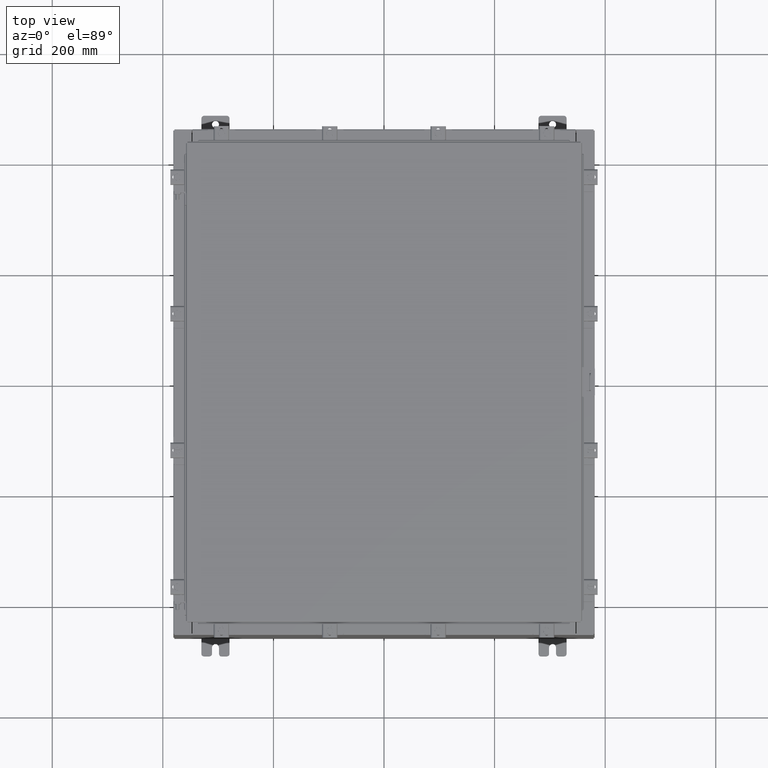
[diagram: clean part render]
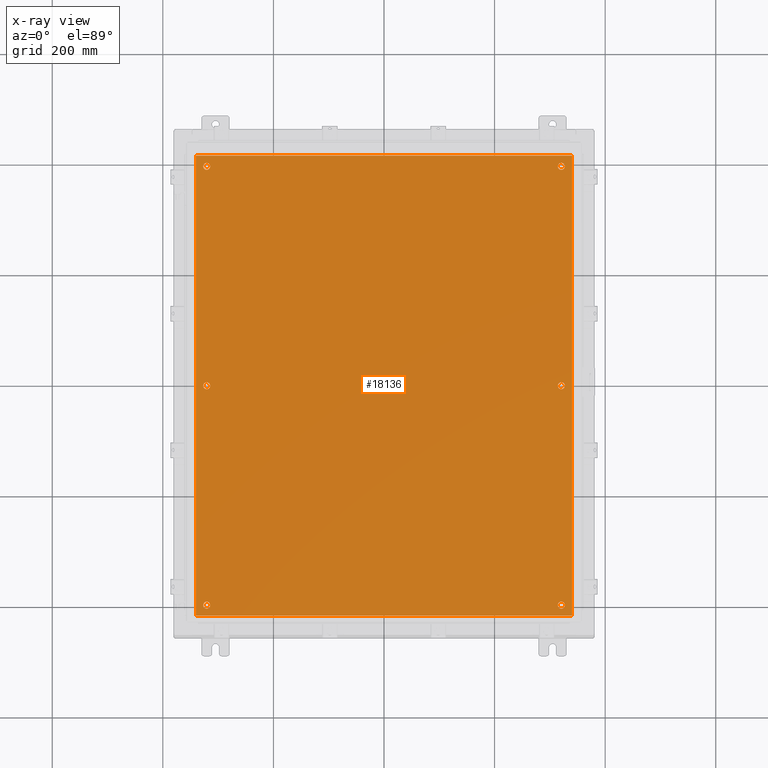
[diagram: x-ray — body ghosted, one internal face saturated and labeled with its STEP entity id]
A machine part, top view, then the same camera in x-ray: the body is ghosted and one INTERNAL B-rep face — a face not visible from any outside direction — is saturated and labeled: STEP entity #18136.
In plain terms, the highlighted planar face has unit normal (0, 0, -1).
Its self-contained STEP definition (entity closure, byte-faithful):
#38 = EDGE_LOOP ( 'NONE', ( #21388, #5611 ) ) ;
#407 = EDGE_CURVE ( 'NONE', #22909, #5419, #1559, .T. ) ;
#501 = CARTESIAN_POINT ( 'NONE',  ( 12.87500000000000400, 3.355087480100814800E-015, -0.1039999999999999800 ) ) ;
#622 = DIRECTION ( 'NONE',  ( -0.0000000000000000000, -0.0000000000000000000, 1.000000000000000000 ) ) ;
#623 = AXIS2_PLACEMENT_3D ( 'NONE', #18167, #6814, #20050 ) ;
#702 = DIRECTION ( 'NONE',  ( 0.0000000000000000000, 0.0000000000000000000, -1.000000000000000000 ) ) ;
#834 = DIRECTION ( 'NONE',  ( -1.000000000000000000, 0.0000000000000000000, 0.0000000000000000000 ) ) ;
#947 = CARTESIAN_POINT ( 'NONE',  ( 12.37500000000000400, -15.62500000000000400, -0.1039999999999999800 ) ) ;
#1303 = CARTESIAN_POINT ( 'NONE',  ( -12.87500000000000500, 15.62500000000000400, -0.1039999999999999800 ) ) ;
#1559 = CIRCLE ( 'NONE', #10254, 0.2500000000000008900 ) ;
#1642 = DIRECTION ( 'NONE',  ( -0.0000000000000000000, -0.0000000000000000000, 1.000000000000000000 ) ) ;
#1868 = FACE_BOUND ( 'NONE', #19933, .T. ) ;
#1893 = DIRECTION ( 'NONE',  ( 0.0000000000000000000, -1.000000000000000000, 0.0000000000000000000 ) ) ;
#1905 = VERTEX_POINT ( 'NONE', #2828 ) ;
#1983 = EDGE_CURVE ( 'NONE', #10000, #5235, #14545, .T. ) ;
#2162 = ORIENTED_EDGE ( 'NONE', *, *, #15969, .T. ) ;
#2285 = CIRCLE ( 'NONE', #19670, 0.2500000000000008900 ) ;
#2319 = CIRCLE ( 'NONE', #23631, 0.2500000000000008900 ) ;
#2362 = ORIENTED_EDGE ( 'NONE', *, *, #407, .T. ) ;
#2614 = CARTESIAN_POINT ( 'NONE',  ( -12.62500000000000400, 15.62500000000000400, -0.1039999999999999800 ) ) ;
#2792 = VERTEX_POINT ( 'NONE', #4327 ) ;
#2797 = ORIENTED_EDGE ( 'NONE', *, *, #24186, .F. ) ;
#2828 = CARTESIAN_POINT ( 'NONE',  ( 12.87500000000000500, 15.62500000000000400, -0.1039999999999999800 ) ) ;
#2963 = CARTESIAN_POINT ( 'NONE',  ( 12.37500000000000400, 15.62500000000000400, -0.1039999999999999800 ) ) ;
#3506 = CIRCLE ( 'NONE', #13500, 0.2500000000000008900 ) ;
#3669 = LINE ( 'NONE', #11580, #16441 ) ;
#3691 = CARTESIAN_POINT ( 'NONE',  ( -12.37500000000000400, -15.62500000000000400, -0.1039999999999999800 ) ) ;
#3742 = VERTEX_POINT ( 'NONE', #23144 ) ;
#3812 = CARTESIAN_POINT ( 'NONE',  ( 12.62500000000000400, -15.62500000000000400, -0.1039999999999999800 ) ) ;
#3838 = CARTESIAN_POINT ( 'NONE',  ( 12.62500000000000400, 15.62500000000000400, -0.1039999999999999800 ) ) ;
#3906 = CARTESIAN_POINT ( 'NONE',  ( -12.87500000000000400, 2.934704822324311800E-016, -0.1039999999999999800 ) ) ;
#4046 = CARTESIAN_POINT ( 'NONE',  ( -12.37500000000000200, 2.628543122537475400E-016, -0.1039999999999999800 ) ) ;
#4250 = EDGE_LOOP ( 'NONE', ( #21728, #12478 ) ) ;
#4327 = CARTESIAN_POINT ( 'NONE',  ( -13.38300000000000300, -16.38299999999999900, -0.1040000000000020100 ) ) ;
#4447 = ORIENTED_EDGE ( 'NONE', *, *, #9246, .F. ) ;
#4535 = DIRECTION ( 'NONE',  ( -1.000000000000000000, 0.0000000000000000000, 0.0000000000000000000 ) ) ;
#4801 = EDGE_CURVE ( 'NONE', #7466, #18627, #4895, .T. ) ;
#4895 = CIRCLE ( 'NONE', #20176, 0.2500000000000008900 ) ;
#4942 = CARTESIAN_POINT ( 'NONE',  ( 12.62500000000000200, 3.355087480100814800E-015, -0.1039999999999999800 ) ) ;
#4975 = CARTESIAN_POINT ( 'NONE',  ( 13.50000000000000000, 16.38299999999999900, -0.1040000000000009100 ) ) ;
#5097 = AXIS2_PLACEMENT_3D ( 'NONE', #3838, #17100, #5757 ) ;
#5235 = VERTEX_POINT ( 'NONE', #12713 ) ;
#5419 = VERTEX_POINT ( 'NONE', #16974 ) ;
#5611 = ORIENTED_EDGE ( 'NONE', *, *, #11730, .T. ) ;
#5658 = EDGE_CURVE ( 'NONE', #3742, #13104, #22637, .T. ) ;
#5729 = DIRECTION ( 'NONE',  ( -1.000000000000000000, 0.0000000000000000000, 0.0000000000000000000 ) ) ;
#5757 = DIRECTION ( 'NONE',  ( -1.000000000000000000, 0.0000000000000000000, 0.0000000000000000000 ) ) ;
#5960 = EDGE_CURVE ( 'NONE', #19551, #7737, #16737, .T. ) ;
#6130 = EDGE_LOOP ( 'NONE', ( #9622, #2162 ) ) ;
#6201 = EDGE_CURVE ( 'NONE', #13104, #3742, #22029, .T. ) ;
#6814 = DIRECTION ( 'NONE',  ( -0.0000000000000000000, -0.0000000000000000000, 1.000000000000000000 ) ) ;
#6830 = DIRECTION ( 'NONE',  ( -1.000000000000000000, 0.0000000000000000000, 0.0000000000000000000 ) ) ;
#6914 = FACE_BOUND ( 'NONE', #4250, .T. ) ;
#7466 = VERTEX_POINT ( 'NONE', #3906 ) ;
#7737 = VERTEX_POINT ( 'NONE', #16094 ) ;
#7808 = CARTESIAN_POINT ( 'NONE',  ( -12.62500000000000200, 2.628543122537475400E-016, -0.1039999999999999800 ) ) ;
#7828 = ORIENTED_EDGE ( 'NONE', *, *, #21973, .T. ) ;
#8270 = CARTESIAN_POINT ( 'NONE',  ( -12.62500000000000400, 15.62500000000000400, -0.1039999999999999800 ) ) ;
#8711 = ORIENTED_EDGE ( 'NONE', *, *, #4801, .T. ) ;
#9148 = VECTOR ( 'NONE', #14987, 39.37007874015748100 ) ;
#9224 = CARTESIAN_POINT ( 'NONE',  ( 12.62500000000000400, 15.62500000000000400, -0.1039999999999999800 ) ) ;
#9246 = EDGE_CURVE ( 'NONE', #2792, #23402, #3669, .T. ) ;
#9431 = CARTESIAN_POINT ( 'NONE',  ( -13.38300000000000300, 16.38299999999998800, -0.1040000000000063800 ) ) ;
#9498 = VECTOR ( 'NONE', #18225, 39.37007874015748100 ) ;
#9622 = ORIENTED_EDGE ( 'NONE', *, *, #5960, .T. ) ;
#9721 = DIRECTION ( 'NONE',  ( -1.000000000000000000, 0.0000000000000000000, 0.0000000000000000000 ) ) ;
#10000 = VERTEX_POINT ( 'NONE', #13339 ) ;
#10211 = DIRECTION ( 'NONE',  ( -1.000000000000000000, 0.0000000000000000000, 0.0000000000000000000 ) ) ;
#10254 = AXIS2_PLACEMENT_3D ( 'NONE', #8270, #21507, #10211 ) ;
#10275 = LINE ( 'NONE', #9431, #19722 ) ;
#11151 = DIRECTION ( 'NONE',  ( -0.0000000000000000000, -0.0000000000000000000, 1.000000000000000000 ) ) ;
#11168 = DIRECTION ( 'NONE',  ( -1.000000000000000000, 0.0000000000000000000, 0.0000000000000000000 ) ) ;
#11350 = EDGE_LOOP ( 'NONE', ( #4447, #2797, #20906, #11423 ) ) ;
#11412 = ORIENTED_EDGE ( 'NONE', *, *, #14083, .T. ) ;
#11423 = ORIENTED_EDGE ( 'NONE', *, *, #16613, .F. ) ;
#11580 = CARTESIAN_POINT ( 'NONE',  ( -13.50000000000000000, -16.38299999999999900, -0.1040000000000020100 ) ) ;
#11646 = EDGE_CURVE ( 'NONE', #14659, #18201, #3506, .T. ) ;
#11730 = EDGE_CURVE ( 'NONE', #18201, #14659, #2319, .T. ) ;
#11977 = FACE_BOUND ( 'NONE', #38, .T. ) ;
#12006 = CARTESIAN_POINT ( 'NONE',  ( -12.62500000000000400, -15.62500000000000400, -0.1039999999999999800 ) ) ;
#12199 = DIRECTION ( 'NONE',  ( -0.0000000000000000000, -0.0000000000000000000, 1.000000000000000000 ) ) ;
#12469 = CARTESIAN_POINT ( 'NONE',  ( 12.87500000000000500, -15.62500000000000400, -0.1039999999999999800 ) ) ;
#12478 = ORIENTED_EDGE ( 'NONE', *, *, #23094, .T. ) ;
#12713 = CARTESIAN_POINT ( 'NONE',  ( -13.38300000000000300, 16.38299999999998800, -0.1040000000000063800 ) ) ;
#12823 = VERTEX_POINT ( 'NONE', #2963 ) ;
#12868 = ORIENTED_EDGE ( 'NONE', *, *, #5658, .T. ) ;
#13000 = CARTESIAN_POINT ( 'NONE',  ( 12.62500000000000200, 3.355087480100814800E-015, -0.1039999999999999800 ) ) ;
#13104 = VERTEX_POINT ( 'NONE', #3691 ) ;
#13208 = CIRCLE ( 'NONE', #623, 0.2500000000000008900 ) ;
#13339 = CARTESIAN_POINT ( 'NONE',  ( 13.38299999999999900, 16.38300000000000300, -0.1040000000000009100 ) ) ;
#13500 = AXIS2_PLACEMENT_3D ( 'NONE', #22434, #11151, #24333 ) ;
#13878 = DIRECTION ( 'NONE',  ( -1.000000000000000000, 0.0000000000000000000, 0.0000000000000000000 ) ) ;
#13943 = DIRECTION ( 'NONE',  ( -1.000000000000000000, 0.0000000000000000000, -0.0000000000000000000 ) ) ;
#13956 = EDGE_LOOP ( 'NONE', ( #11412, #8711 ) ) ;
#14083 = EDGE_CURVE ( 'NONE', #18627, #7466, #13208, .T. ) ;
#14457 = EDGE_LOOP ( 'NONE', ( #19360, #12868 ) ) ;
#14545 = LINE ( 'NONE', #4975, #9498 ) ;
#14659 = VERTEX_POINT ( 'NONE', #12469 ) ;
#14787 = LINE ( 'NONE', #20430, #9148 ) ;
#14879 = DIRECTION ( 'NONE',  ( -1.000000000000000000, 0.0000000000000000000, 0.0000000000000000000 ) ) ;
#14987 = DIRECTION ( 'NONE',  ( 0.0000000000000000000, 1.000000000000000000, 0.0000000000000000000 ) ) ;
#15622 = AXIS2_PLACEMENT_3D ( 'NONE', #19548, #702, #13943 ) ;
#15667 = CIRCLE ( 'NONE', #20630, 0.2500000000000008900 ) ;
#15901 = DIRECTION ( 'NONE',  ( -0.0000000000000000000, -0.0000000000000000000, 1.000000000000000000 ) ) ;
#15969 = EDGE_CURVE ( 'NONE', #7737, #19551, #15667, .T. ) ;
#16094 = CARTESIAN_POINT ( 'NONE',  ( 12.37500000000000200, 3.385703650079498500E-015, -0.1039999999999999800 ) ) ;
#16441 = VECTOR ( 'NONE', #19081, 39.37007874015748100 ) ;
#16613 = EDGE_CURVE ( 'NONE', #23402, #10000, #14787, .T. ) ;
#16737 = CIRCLE ( 'NONE', #21147, 0.2500000000000008900 ) ;
#16831 = CARTESIAN_POINT ( 'NONE',  ( 13.38299999999999900, -16.38300000000000300, -0.1040000000000009100 ) ) ;
#16974 = CARTESIAN_POINT ( 'NONE',  ( -12.37500000000000400, 15.62500000000000400, -0.1039999999999999800 ) ) ;
#16985 = FACE_BOUND ( 'NONE', #13956, .T. ) ;
#16999 = AXIS2_PLACEMENT_3D ( 'NONE', #9224, #22451, #11168 ) ;
#17082 = DIRECTION ( 'NONE',  ( -0.0000000000000000000, -0.0000000000000000000, 1.000000000000000000 ) ) ;
#17100 = DIRECTION ( 'NONE',  ( -0.0000000000000000000, -0.0000000000000000000, 1.000000000000000000 ) ) ;
#17570 = FACE_BOUND ( 'NONE', #6130, .T. ) ;
#18136 = ADVANCED_FACE ( 'NONE', ( #17570, #16985, #22002, #11977, #6914, #1868, #21398 ), #23353, .T. ) ;
#18167 = CARTESIAN_POINT ( 'NONE',  ( -12.62500000000000200, 2.628543122537475400E-016, -0.1039999999999999800 ) ) ;
#18189 = DIRECTION ( 'NONE',  ( -0.0000000000000000000, -0.0000000000000000000, 1.000000000000000000 ) ) ;
#18201 = VERTEX_POINT ( 'NONE', #947 ) ;
#18225 = DIRECTION ( 'NONE',  ( -1.000000000000000000, -0.0000000000000000000, -0.0000000000000000000 ) ) ;
#18627 = VERTEX_POINT ( 'NONE', #4046 ) ;
#19081 = DIRECTION ( 'NONE',  ( 1.000000000000000000, -0.0000000000000000000, -0.0000000000000000000 ) ) ;
#19360 = ORIENTED_EDGE ( 'NONE', *, *, #6201, .T. ) ;
#19424 = AXIS2_PLACEMENT_3D ( 'NONE', #12006, #622, #13878 ) ;
#19548 = CARTESIAN_POINT ( 'NONE',  ( 0.0000000000000000000, 0.0000000000000000000, -0.1039999999999999800 ) ) ;
#19551 = VERTEX_POINT ( 'NONE', #501 ) ;
#19670 = AXIS2_PLACEMENT_3D ( 'NONE', #2614, #15901, #4535 ) ;
#19722 = VECTOR ( 'NONE', #1893, 39.37007874015748100 ) ;
#19933 = EDGE_LOOP ( 'NONE', ( #7828, #2362 ) ) ;
#20050 = DIRECTION ( 'NONE',  ( -1.000000000000000000, 0.0000000000000000000, 0.0000000000000000000 ) ) ;
#20176 = AXIS2_PLACEMENT_3D ( 'NONE', #7808, #21023, #9721 ) ;
#20430 = CARTESIAN_POINT ( 'NONE',  ( 13.38299999999999900, -16.38300000000000300, -0.1040000000000009100 ) ) ;
#20630 = AXIS2_PLACEMENT_3D ( 'NONE', #4942, #18189, #6830 ) ;
#20906 = ORIENTED_EDGE ( 'NONE', *, *, #1983, .F. ) ;
#20933 = CIRCLE ( 'NONE', #5097, 0.2500000000000008900 ) ;
#21023 = DIRECTION ( 'NONE',  ( -0.0000000000000000000, -0.0000000000000000000, 1.000000000000000000 ) ) ;
#21147 = AXIS2_PLACEMENT_3D ( 'NONE', #13000, #1642, #14879 ) ;
#21388 = ORIENTED_EDGE ( 'NONE', *, *, #11646, .T. ) ;
#21398 = FACE_OUTER_BOUND ( 'NONE', #11350, .T. ) ;
#21507 = DIRECTION ( 'NONE',  ( -0.0000000000000000000, -0.0000000000000000000, 1.000000000000000000 ) ) ;
#21626 = AXIS2_PLACEMENT_3D ( 'NONE', #23491, #12199, #834 ) ;
#21728 = ORIENTED_EDGE ( 'NONE', *, *, #22996, .T. ) ;
#21973 = EDGE_CURVE ( 'NONE', #5419, #22909, #2285, .T. ) ;
#22002 = FACE_BOUND ( 'NONE', #14457, .T. ) ;
#22029 = CIRCLE ( 'NONE', #19424, 0.2500000000000008900 ) ;
#22434 = CARTESIAN_POINT ( 'NONE',  ( 12.62500000000000400, -15.62500000000000400, -0.1039999999999999800 ) ) ;
#22451 = DIRECTION ( 'NONE',  ( -0.0000000000000000000, -0.0000000000000000000, 1.000000000000000000 ) ) ;
#22637 = CIRCLE ( 'NONE', #21626, 0.2500000000000008900 ) ;
#22909 = VERTEX_POINT ( 'NONE', #1303 ) ;
#22996 = EDGE_CURVE ( 'NONE', #1905, #12823, #23315, .T. ) ;
#23094 = EDGE_CURVE ( 'NONE', #12823, #1905, #20933, .T. ) ;
#23144 = CARTESIAN_POINT ( 'NONE',  ( -12.87500000000000500, -15.62500000000000400, -0.1039999999999999800 ) ) ;
#23315 = CIRCLE ( 'NONE', #16999, 0.2500000000000008900 ) ;
#23353 = PLANE ( 'NONE',  #15622 ) ;
#23402 = VERTEX_POINT ( 'NONE', #16831 ) ;
#23491 = CARTESIAN_POINT ( 'NONE',  ( -12.62500000000000400, -15.62500000000000400, -0.1039999999999999800 ) ) ;
#23631 = AXIS2_PLACEMENT_3D ( 'NONE', #3812, #17082, #5729 ) ;
#24186 = EDGE_CURVE ( 'NONE', #5235, #2792, #10275, .T. ) ;
#24333 = DIRECTION ( 'NONE',  ( -1.000000000000000000, 0.0000000000000000000, 0.0000000000000000000 ) ) ;